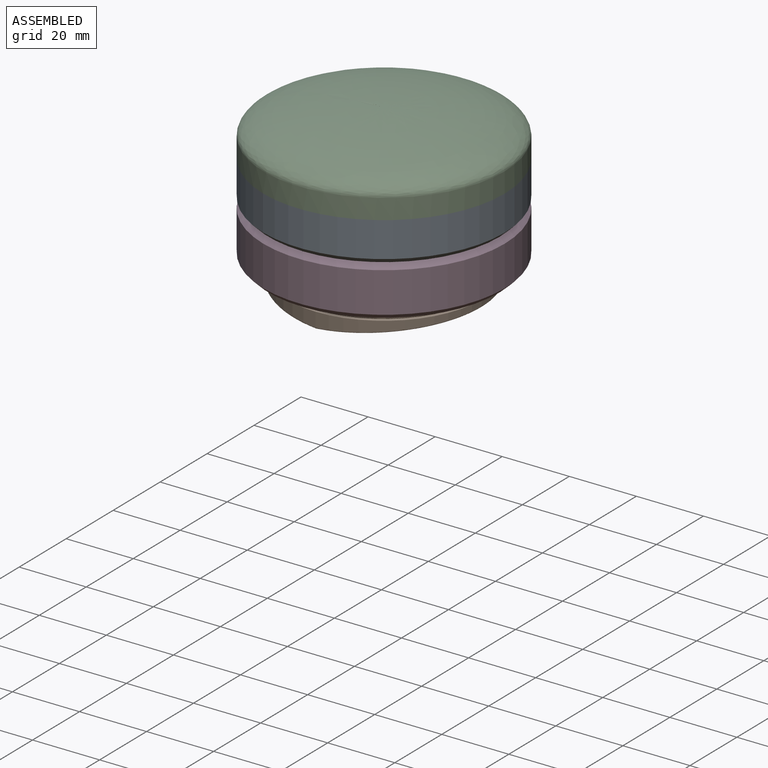
[diagram: assembled view]
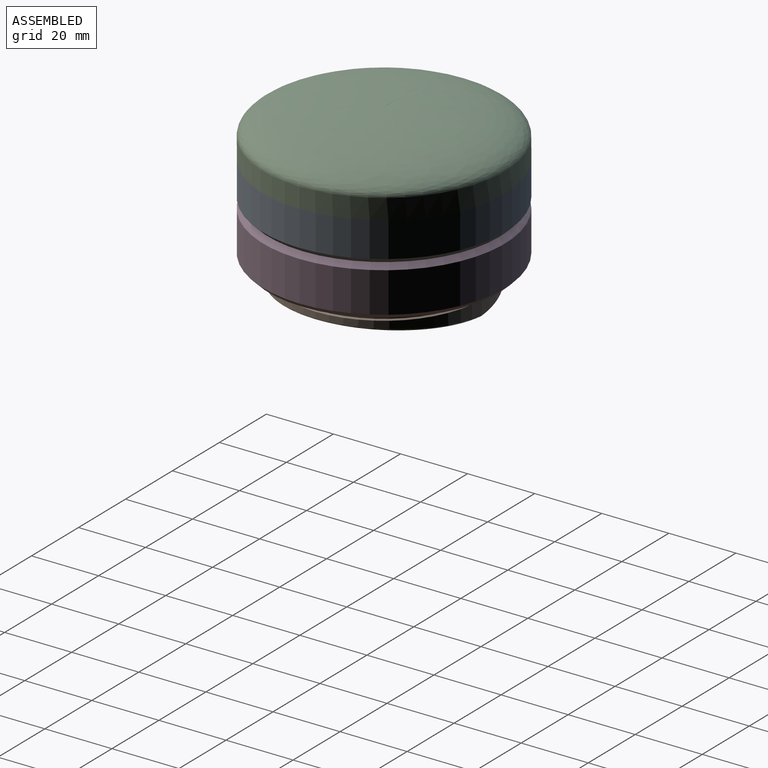
[diagram: assembled view, second angle]
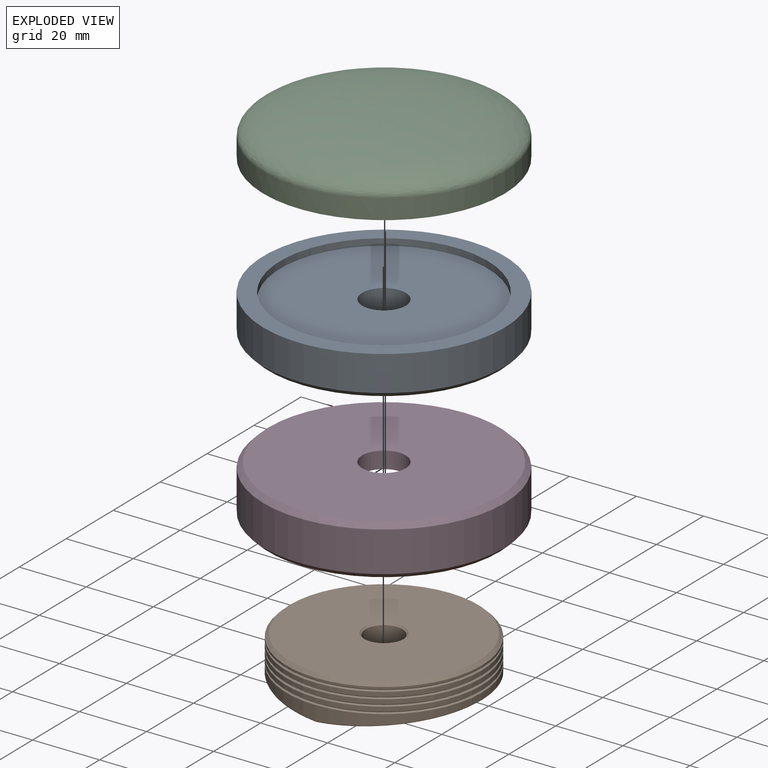
[diagram: exploded view]
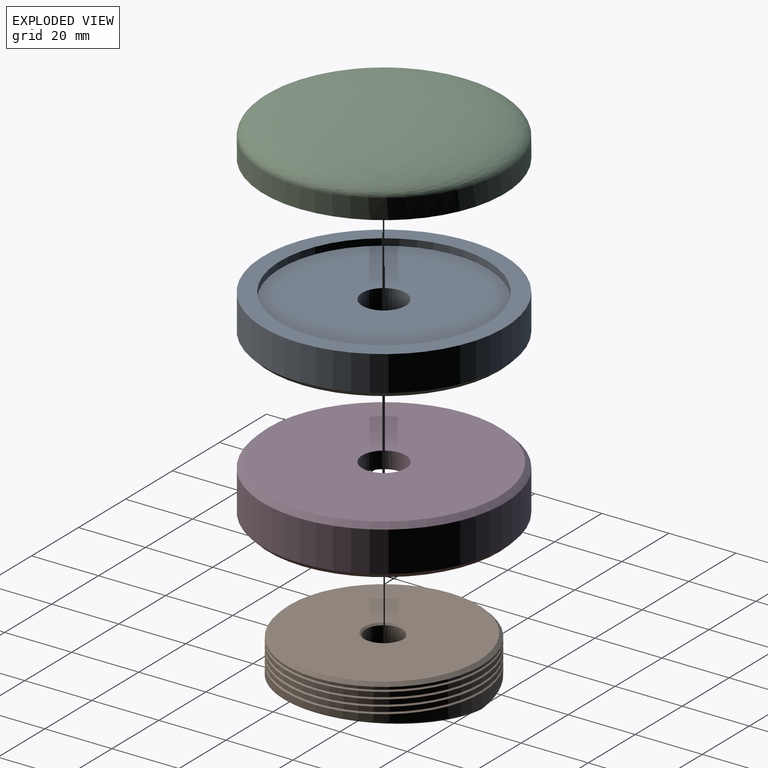
[diagram: exploded view, second angle]
ASSEMBLY  parts=4 mates=3
PART A: 9 faces, bbox 72x72x12 mm
  f0: plane 62x62mm, normal (0,0,1), area 2886.3mm2, adj f1,f7
  f1: cylinder r=6.5mm len=13mm, axis (0,0,-1), area 367.6mm2, adj f0,f5
  f2: cylinder r=36mm len=72mm, axis (0,0,-1), area 2375mm2, adj f6,f8
  f3: plane 69x69mm, normal (0,0,-1), area 720.2mm2, adj f4,f6
  f4: cylinder r=31mm len=62mm, axis (0,0,-1), area 194.8mm2, adj f3,f5
  f5: plane 62x62mm, normal (0,0,-1), area 2886.3mm2, adj f1,f4
  f6: cone r=36mm half-angle=45deg, axis (0,0,1), area 469.8mm2, adj f2,f3
  f7: cylinder r=31mm len=62mm, axis (0,0,-1), area 389.6mm2, adj f0,f8
  f8: plane 72x72mm, normal (0,0,1), area 1052.4mm2, adj f2,f7
PART B: 25 faces, bbox 58.3x58.3x13.4 mm
  f0: cylinder r=29.15mm len=58.3mm, axis (0,0,-1), area 478.6mm2, adj f13,f21,f24
  f1: cylinder r=29.15mm len=58.3mm, axis (0,0,-1), area 124.2mm2, adj f3,f5
  f2: plane 56.3x56.3mm, normal (0,0,1), area 2376.4mm2, adj f3,f17
  f3: cone r=28.15mm half-angle=45deg, axis (0,0,-1), area 254.6mm2, adj f1,f2
  f4: cone r=29.75mm half-angle=54.5deg, axis (0,0,-1), area 100.7mm2, adj f5,f6
  f5: cone r=28.7mm half-angle=54.5deg, axis (0,0,1), area 100.7mm2, adj f1,f4
  f6: cylinder r=29.15mm len=58.3mm, axis (0,0,-1), area 248.4mm2, adj f4,f8
  f7: cone r=29.75mm half-angle=54.5deg, axis (0,0,-1), area 100.7mm2, adj f8,f9
  f8: cone r=28.7mm half-angle=54.5deg, axis (0,0,1), area 100.7mm2, adj f6,f7
  f9: cylinder r=29.15mm len=58.3mm, axis (0,0,-1), area 248.4mm2, adj f7,f11
  f10: cone r=29.75mm half-angle=54.5deg, axis (0,0,-1), area 100.7mm2, adj f11,f12
  f11: cone r=28.7mm half-angle=54.5deg, axis (0,0,1), area 100.7mm2, adj f9,f10
  f12: cylinder r=29.15mm len=58.3mm, axis (0,0,-1), area 248.4mm2, adj f10,f14
  f13: cone r=29.75mm half-angle=54.5deg, axis (0,0,-1), area 100.7mm2, adj f0,f14
  f14: cone r=28.7mm half-angle=54.5deg, axis (0,0,1), area 100.7mm2, adj f12,f13
  f15: cylinder r=5.5mm len=11mm, axis (0,0,1), area 328.3mm2, adj f16,f17
  f16: plane 11x11mm, normal (0,0,1), area 95mm2, adj f15
  f17: cone r=5.5mm half-angle=45deg, axis (0,0,1), area 25.5mm2, adj f2,f15
  f18: plane 57.3x28.65mm, normal (0.09,0,-1), area 1294.1mm2, adj f20,f24
  f19: plane 57.3x28.65mm, normal (-0.09,0,-1), area 1294.1mm2, adj f20,f21
  f20: cylinder r=0.5mm len=57.3mm, axis (0,1,0), area 4.9mm2, adj f18,f19,f22,f23
  f21: bspline ~58.3x34.22mm, area 69.1mm2, adj f0,f19,f22,f23
  f22: sphere r=0.5mm, area 0mm2, adj f20,f21,f24
  f23: sphere r=0.5mm, area 0mm2, adj f20,f21,f24
  f24: bspline ~58.3x34.22mm, area 69.1mm2, adj f0,f18,f22,f23
PART C: 7 faces, bbox 72x72x15.5 mm
  f0: cylinder r=31mm len=62mm, axis (0,0,-1), area 389.6mm2, adj f1,f3
  f1: plane 62x62mm, normal (0,0,-1), area 2842.4mm2, adj f0,f5
  f2: cylinder r=36mm len=72mm, axis (0,0,1), area 1357.2mm2, adj f3,f4
  f3: plane 72x72mm, normal (0,0,-1), area 1052.4mm2, adj f0,f2
  f4: revolved ~72x72mm, area 4478.2mm2, adj f2
  f5: cylinder r=7.5mm len=15mm, axis (0,0,-1), area 471.2mm2, adj f1,f6
  f6: plane 15x15mm, normal (0,0,-1), area 176.7mm2, adj f5
PART D: 9 faces, bbox 72x72x15 mm
  f0: cylinder r=29.3mm len=58.6mm, axis (0,0,-1), area 1748.9mm2, adj f3,f8
  f1: cylinder r=36mm len=72mm, axis (0,0,-1), area 2714.3mm2, adj f6,f7
  f2: plane 69x69mm, normal (0,0,-1), area 949.4mm2, adj f6,f8
  f3: plane 58.6x58.6mm, normal (0,0,-1), area 2564.3mm2, adj f0,f4
  f4: cylinder r=6.5mm len=13mm, axis (0,0,-1), area 204.2mm2, adj f3,f5
  f5: plane 69x69mm, normal (0,0,1), area 3606.5mm2, adj f4,f7
  f6: cone r=36mm half-angle=45deg, axis (0,0,1), area 469.8mm2, adj f1,f2
  f7: cone r=34.5mm half-angle=45deg, axis (0,0,-1), area 469.8mm2, adj f1,f5
  f8: cone r=29.8mm half-angle=45deg, axis (0,0,-1), area 131.3mm2, adj f0,f2
PLACE A t=(32.89,34.14,39.23)mm
PLACE B t=(32.89,34.14,16.23)mm
PLACE C t=(32.89,34.14,49.23)mm
PLACE D t=(32.89,34.14,24.23)mm
MATE fastened A.f4 <-> D.f1  axis (0,0,-1) through (32.89,34.14,39.23)mm
MATE fastened D.f0 <-> B.f0  axis (0,0,-1) through (32.89,34.14,34.23)mm
MATE fastened C.f0 <-> A.f1  axis (0,0,-1) through (32.89,34.14,49.23)mm
